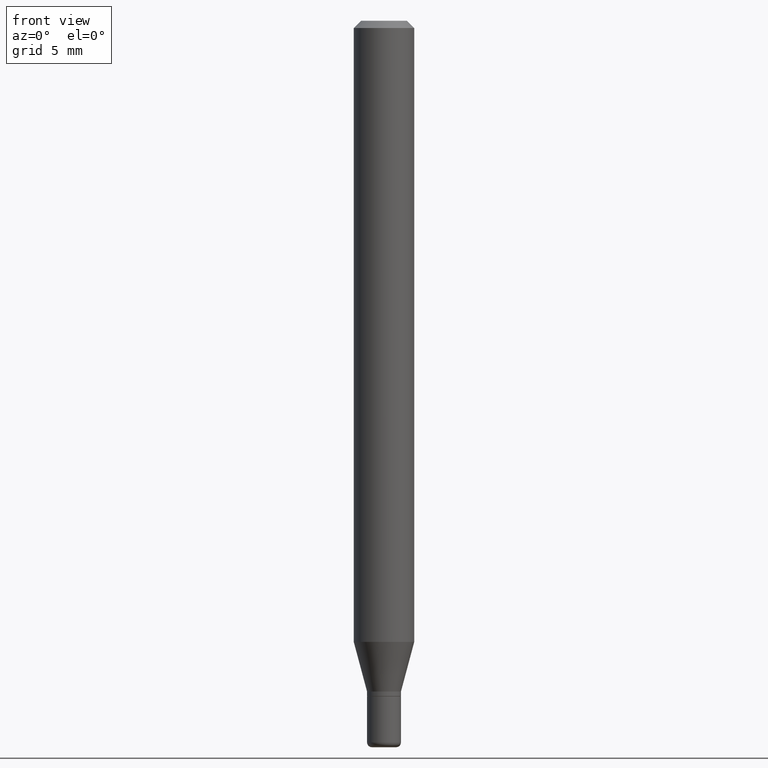
[diagram: clean part render]
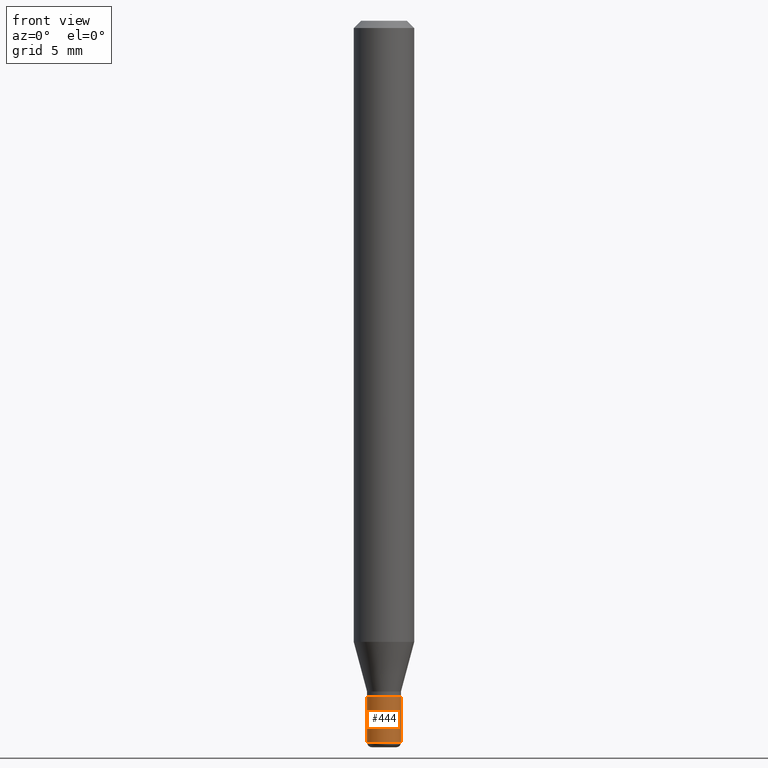
[diagram: same view with one face highlighted and labeled with its STEP entity id]
A machine part, front view. The second image highlights one B-rep face of the part: STEP entity #444.
In plain terms, the highlighted cylindrical surface (edge-blend (fillet) strip) has radius 0.889 mm, axis along (-0, 0, 1).
Its self-contained STEP definition (entity closure, byte-faithful):
#18 = ORIENTED_EDGE ( 'NONE', *, *, #382, .F. ) ;
#21 = CARTESIAN_POINT ( 'NONE',  ( 0.03500000000000000333, -5.115020161405208194E-15, -1.395000000000000018 ) ) ;
#24 = DIRECTION ( 'NONE',  ( -2.445468806185136597E-29, 3.491481338843145583E-15, 1.000000000000000000 ) ) ;
#25 = ORIENTED_EDGE ( 'NONE', *, *, #349, .T. ) ;
#31 = CARTESIAN_POINT ( 'NONE',  ( 0.000000000000000000, 0.000000000000000000, 0.000000000000000000 ) ) ;
#33 = DIRECTION ( 'NONE',  ( 1.000000000000000000, -6.982962677686266711E-15, 4.876176775795935793E-29 ) ) ;
#36 = CIRCLE ( 'NONE', #410, 0.03499999999999994782 ) ;
#37 = EDGE_CURVE ( 'NONE', #459, #304, #36, .T. ) ;
#66 = DIRECTION ( 'NONE',  ( 1.000000000000000000, -6.982962677686276966E-15, 0.000000000000000000 ) ) ;
#70 = AXIS2_PLACEMENT_3D ( 'NONE', #234, #389, #66 ) ;
#73 = DIRECTION ( 'NONE',  ( -2.445468806185136597E-29, 3.491481338843145583E-15, 1.000000000000000000 ) ) ;
#77 = DIRECTION ( 'NONE',  ( -2.445468806185136877E-29, 3.491481338843145188E-15, 1.000000000000000000 ) ) ;
#95 = EDGE_CURVE ( 'NONE', #459, #212, #155, .T. ) ;
#150 = DIRECTION ( 'NONE',  ( -2.445468806185136877E-29, 3.491481338843145188E-15, 1.000000000000000000 ) ) ;
#153 = VECTOR ( 'NONE', #150, 39.37007874015748143 ) ;
#155 = LINE ( 'NONE', #386, #368 ) ;
#180 = CARTESIAN_POINT ( 'NONE',  ( 0.03499999999999994782, -5.446710888595306494E-15, -1.490000000000000213 ) ) ;
#212 = VERTEX_POINT ( 'NONE', #227 ) ;
#227 = CARTESIAN_POINT ( 'NONE',  ( -0.03499999999999999639, -4.787771873765202881E-15, -1.395000000000000018 ) ) ;
#234 = CARTESIAN_POINT ( 'NONE',  ( 3.411428984628265351E-29, -4.870616467686188228E-15, -1.395000000000000018 ) ) ;
#247 = ORIENTED_EDGE ( 'NONE', *, *, #95, .F. ) ;
#272 = FACE_OUTER_BOUND ( 'NONE', #338, .T. ) ;
#301 = VERTEX_POINT ( 'NONE', #21 ) ;
#304 = VERTEX_POINT ( 'NONE', #180 ) ;
#309 = CARTESIAN_POINT ( 'NONE',  ( 0.03499999999999997558, -2.444036937190191771E-16, 1.706661871528576406E-30 ) ) ;
#311 = CARTESIAN_POINT ( 'NONE',  ( -0.03499999999999994782, -4.787771873765202881E-15, -1.490000000000000213 ) ) ;
#338 = EDGE_LOOP ( 'NONE', ( #247, #460, #25, #18 ) ) ;
#349 = EDGE_CURVE ( 'NONE', #304, #301, #471, .T. ) ;
#368 = VECTOR ( 'NONE', #77, 39.37007874015748143 ) ;
#375 = DIRECTION ( 'NONE',  ( 1.000000000000000000, -6.982962677686259611E-15, 0.000000000000000000 ) ) ;
#377 = CIRCLE ( 'NONE', #70, 0.03500000000000000333 ) ;
#381 = CARTESIAN_POINT ( 'NONE',  ( 3.643748521215853910E-29, -5.202307194876288105E-15, -1.490000000000000213 ) ) ;
#382 = EDGE_CURVE ( 'NONE', #212, #301, #377, .T. ) ;
#386 = CARTESIAN_POINT ( 'NONE',  ( -0.03499999999999997558, 2.486899575160348915E-16, -1.721627281589215706E-30 ) ) ;
#389 = DIRECTION ( 'NONE',  ( -2.445468806185136597E-29, 3.491481338843145583E-15, 1.000000000000000000 ) ) ;
#410 = AXIS2_PLACEMENT_3D ( 'NONE', #381, #24, #375 ) ;
#432 = CYLINDRICAL_SURFACE ( 'NONE', #476, 0.03499999999999997558 ) ;
#444 = ADVANCED_FACE ( 'NONE', ( #272 ), #432, .T. ) ;
#459 = VERTEX_POINT ( 'NONE', #311 ) ;
#460 = ORIENTED_EDGE ( 'NONE', *, *, #37, .T. ) ;
#471 = LINE ( 'NONE', #309, #153 ) ;
#476 = AXIS2_PLACEMENT_3D ( 'NONE', #31, #73, #33 ) ;